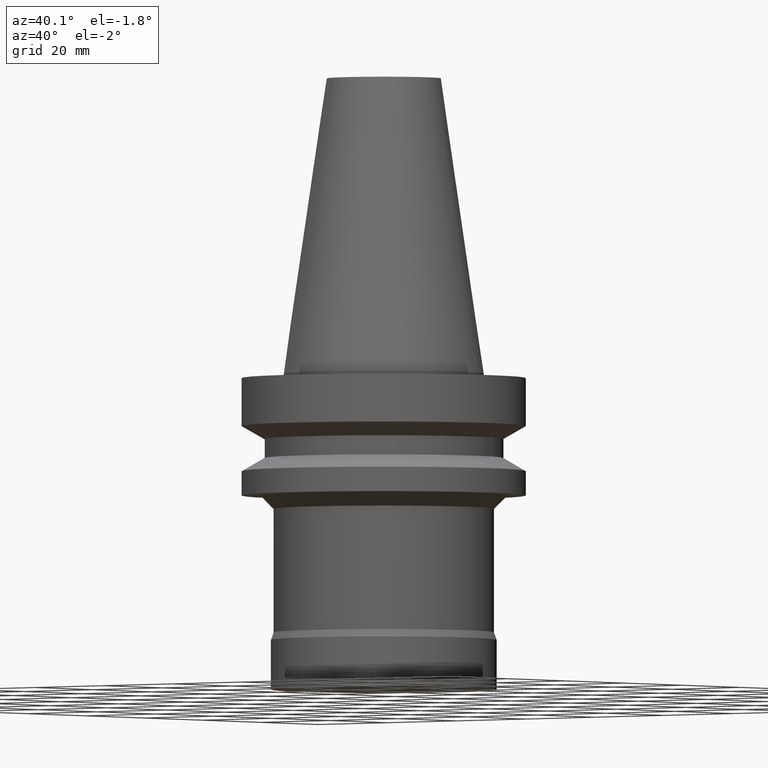
[diagram: clean part render]
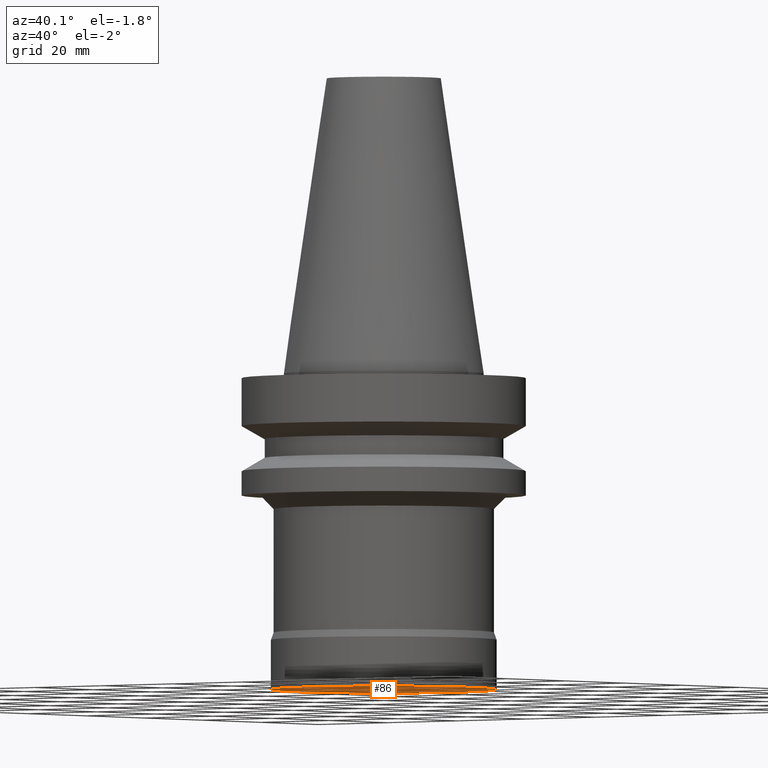
[diagram: same view with one face highlighted and labeled with its STEP entity id]
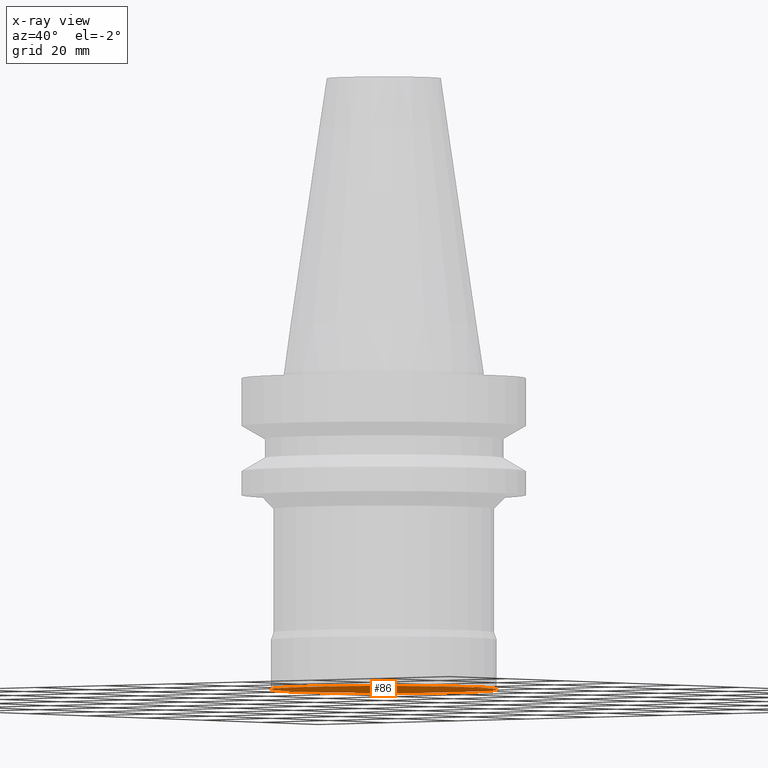
[diagram: x-ray of the same camera — body ghosted, the highlighted face saturated]
A machine part, auxiliary view. The second image highlights one B-rep face of the part: STEP entity #86.
The next image is the same camera in x-ray: the body ghosted, the highlighted face saturated — about 0% of this face is hidden behind the body in this view.
In plain terms, the highlighted planar face has unit normal (0, 0, -1).
Its self-contained STEP definition (entity closure, byte-faithful):
#86=ADVANCED_FACE('',(#124),#125,.T.);
#124=FACE_OUTER_BOUND('',#167,.T.);
#125=PLANE('',#168);
#167=EDGE_LOOP('',(#232));
#168=AXIS2_PLACEMENT_3D('',#233,#234,#235);
#232=ORIENTED_EDGE('',*,*,#261,.T.);
#233=CARTESIAN_POINT('',(4.28626379701574E-015,12.5,-70.0));
#234=DIRECTION('',(6.12323399573677E-017,1.22464679914735E-016,-1.0));
#235=DIRECTION('',(-1.23259516440783E-032,1.0,1.22464679914735E-016));
#261=EDGE_CURVE('',#286,#286,#287,.T.);
#286=VERTEX_POINT('',#314);
#287=CIRCLE('',#315,25.0);
#314=CARTESIAN_POINT('',(4.28626379701574E-015,25.0,-70.0));
#315=AXIS2_PLACEMENT_3D('',#353,#354,#355);
#353=CARTESIAN_POINT('',(4.28626379701574E-015,8.57252759403147E-015,-70.0));
#354=DIRECTION('',(6.12323399573677E-017,1.22464679914735E-016,-1.0));
#355=DIRECTION('',(-1.23259516440783E-032,1.0,1.22464679914735E-016));